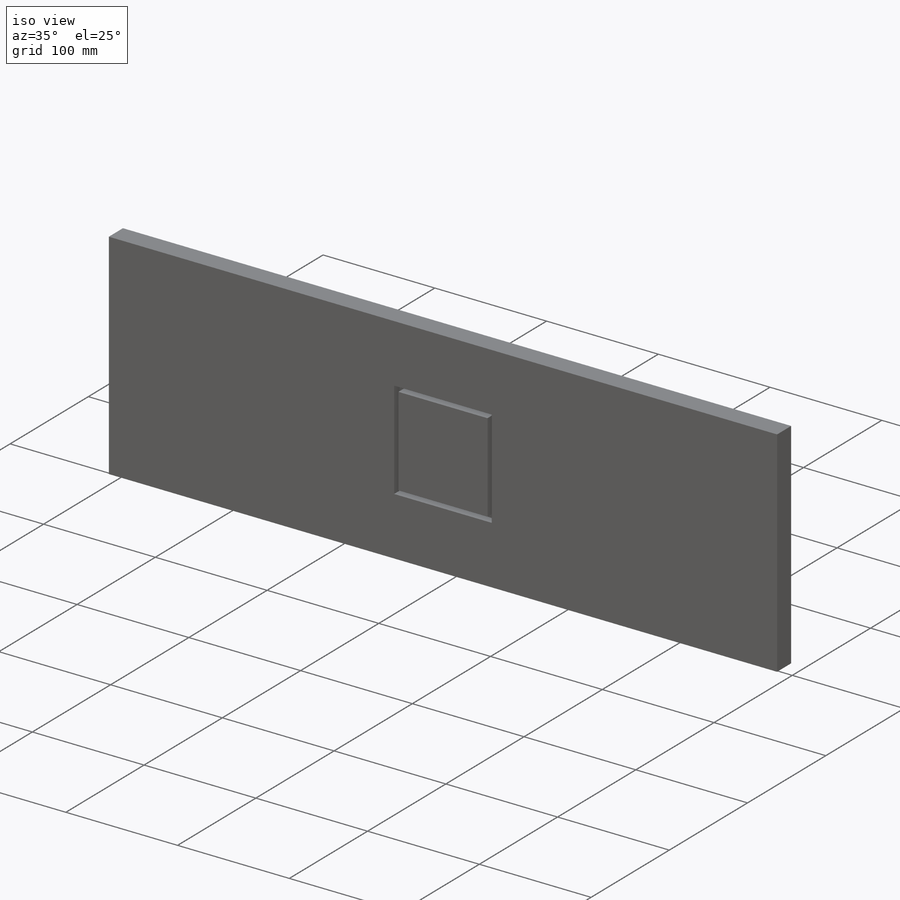
[diagram: iso view]
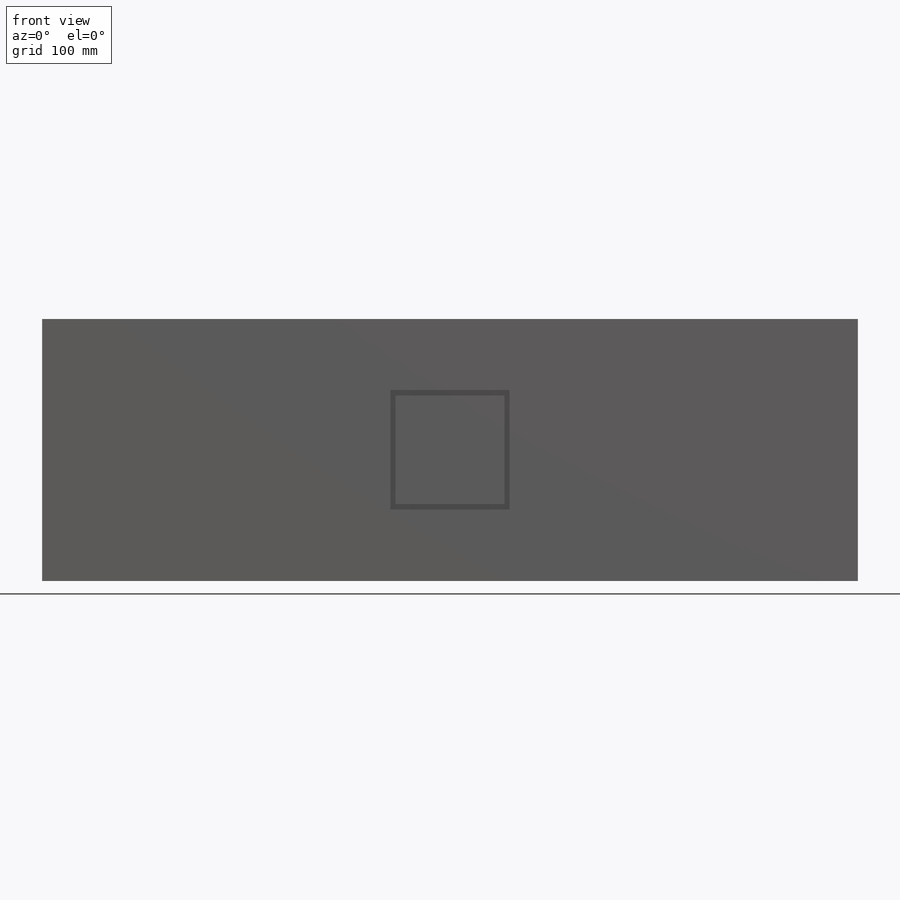
[diagram: front view]
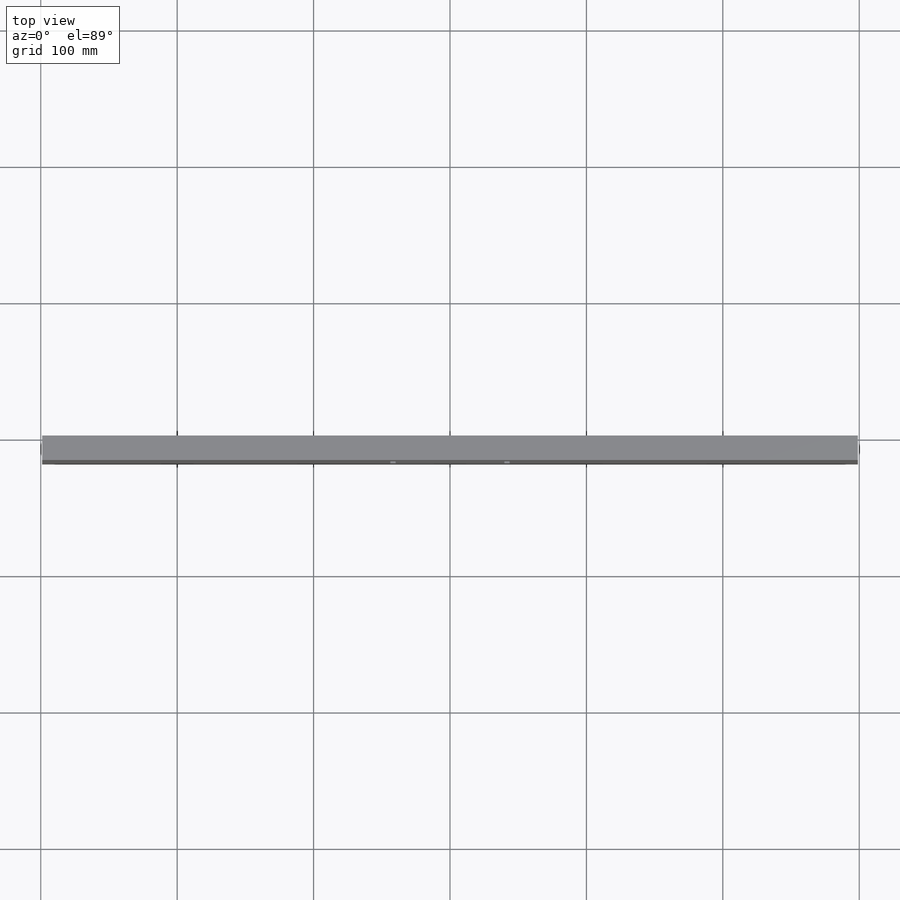
[diagram: top view]
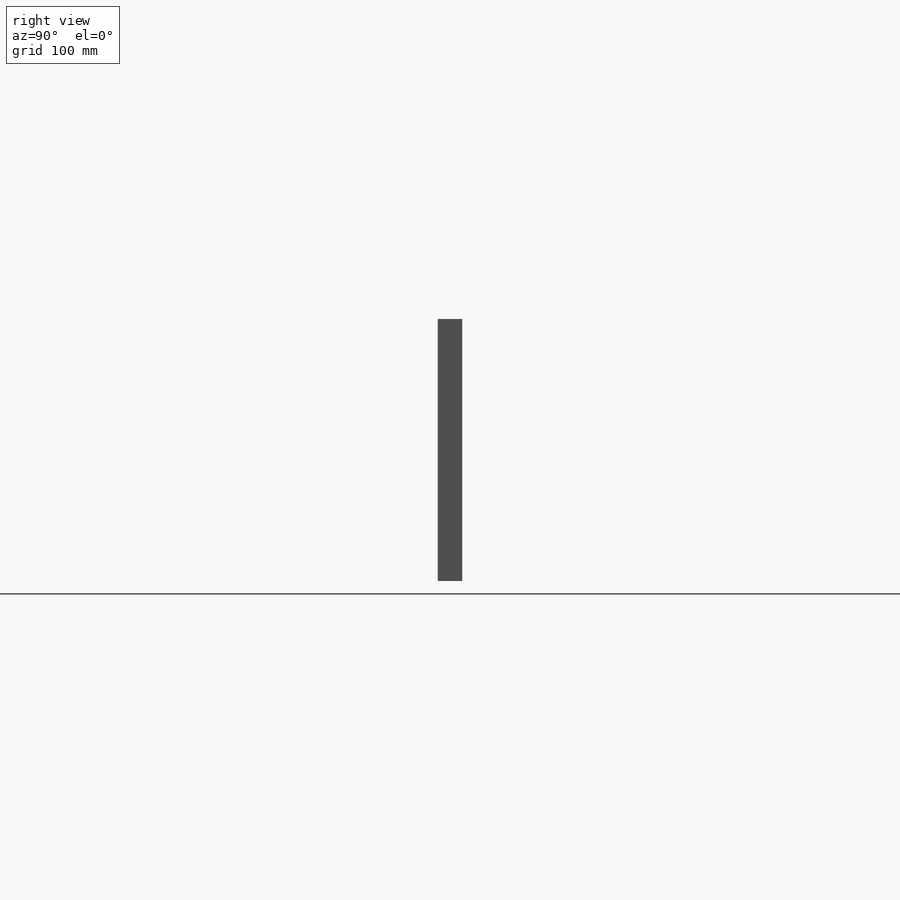
[diagram: right view]
SOLIDWORKS PART (.sldprt)
format: sldprt  version: not decoded by parser v0  size: 345,088 bytes
history: native  units: mm
features: sketch x5, extrude x3, cut_extrude x2, material x1 (+13 scaffold rows collapsed; 1 parser-record rows omitted)
feature tree (25):
  scaffold x13  (default folders/planes/origin — collapsed)
  material  "Material <not specified>"
  sketch  "Sketch1"  dims[D1=192.0mm D2=598.0mm]
  extrude  "Boss-Extrude1"  Depth=18mm
  sketch  "Sketch2"  dims[D1=87.4mm D2=87.6mm D3=~70.452067mm]
  cut_extrude  "Cut-Extrude1"  Depth=7mm
  sketch  "Sketch3"  dims[D4=10.0mm D1=60.0mm D2=67.0mm D3=10.0mm D5=13.5mm]
  cut_extrude  "Cut-Extrude2"  Depth=10.5mm _TNextInd=95 _TElemType=0mm _TCompTag=0mm _TID1=0mm
  extrude  "_TAttDefEntBased2"  Depth=0mm _TElemType=0mm _TID1=0mm _TCompTag=0mm _TElemTag=0mm _TID2=0mm _TSegmType=0mm
  extrude  "_TAttDefNameBased2"  Depth=0mm _TElemType=0mm _TElemTag=0mm _TID1=0mm _TID2=0mm _TSegmType=0mm _TCompTag=0mm
  parser-record x1  (decoder bookkeeping rows leaked as tree rows — omitted from the tree; the rows remain in map.json)
  sketch  "Sketch_MAC1-1_KITCHLED_MILLING"
  sketch  "CoordSys_MAC1-2_KITCHLED_MILLING"  dims[c1._TElemType=0.0mm c1._TElemTag=0.0mm c1._TID1=0.0mm c1._TID2=0.0mm c1._TSegmType=0.0mm c1._TCompTag=0.0mm c2._TElemType=0.0mm c2._TElemTag=0.0mm c2._TID1=0.0mm c2._TID2=0.0mm c2._TSegmType=0.0mm c2._TCompTag=0.0mm c3._TElemType=0.0mm c3._TID1=0.0mm c3._TCompTag=0.0mm c4._TElemType=0.0mm c4._TID1=0.0mm c4._TCompTag=0.0mm c5._TElemType=0.0mm c5._TID1=0.0mm c5._TCompTag=0.0mm c6._TElemType=0.0mm c6._TID1=0.0mm c6._TCompTag=0.0mm c7._TElemType=0.0mm c7._TID1=0.0mm c7._TCompTag=0.0mm c8._TElemType=0.0mm c8._TID1=0.0mm c8._TCompTag=0.0mm c9._TElemType=0.0mm c9._TID1=0.0mm c9._TCompTag=0.0mm c10._TElemType=0.0mm c10._TID1=0.0mm c10._TCompTag=0.0mm c11._TElemType=0.0mm c11._TID1=0.0mm c11._TCompTag=0.0mm c12._TElemType=0.0mm c12._TID1=0.0mm c12._TCompTag=0.0mm c13._TElemType=0.0mm c13._TID1=0.0mm c13._TCompTag=0.0mm c14._TElemType=0.0mm c14._TID1=0.0mm c14._TCompTag=0.0mm c15._TElemType=0.0mm c15._TID1=0.0mm c15._TCompTag=0.0mm c16._TElemType=0.0mm c16._TID1=0.0mm c16._TCompTag=0.0mm c17._TElemType=0.0mm c17._TID1=0.0mm c17._TCompTag=0.0mm c18._TElemType=0.0mm c18._TID1=0.0mm c18._TCompTag=0.0mm c19._TElemType=0.0mm c19._TID1=0.0mm c19._TCompTag=0.0mm c20._TElemType=0.0mm c20._TID1=0.0mm c20._TCompTag=0.0mm c21._TElemType=0.0mm c21._TID1=0.0mm c21._TCompTag=0.0mm c22._TElemType=0.0mm c22._TID1=0.0mm c22._TCompTag=0.0mm c23._TElemType=0.0mm c23._TID1=0.0mm c23._TCompTag=0.0mm c24._TElemType=0.0mm c24._TID1=0.0mm c24._TCompTag=0.0mm c25._TElemType=0.0mm c25._TID1=0.0mm c25._TCompTag=0.0mm c26._TElemType=0.0mm c26._TID1=0.0mm c26._TCompTag=0.0mm c27._TElemType=0.0mm c27._TID1=0.0mm c27._TCompTag=0.0mm c28._TElemType=0.0mm c28._TID1=0.0mm c28._TCompTag=0.0mm c29._TElemType=0.0mm c29._TID1=0.0mm c29._TCompTag=0.0mm c30._TElemType=0.0mm c30._TID1=0.0mm c30._TCompTag=0.0mm c31._TElemType=0.0mm c31._TID1=0.0mm c31._TCompTag=0.0mm c32._TElemType=0.0mm c32._TID1=0.0mm c32._TCompTag=0.0mm c33._TElemType=0.0mm c33._TID1=0.0mm c33._TCompTag=0.0mm c34._TElemType=0.0mm c34._TID1=0.0mm c34._TCompTag=0.0mm c35._TElemType=0.0mm c35._TID1=0.0mm c35._TCompTag=0.0mm c36._TElemType=0.0mm c36._TID1=0.0mm c36._TCompTag=0.0mm c37._TElemType=0.0mm c37._TID1=0.0mm c37._TCompTag=0.0mm c38._TElemType=0.0mm c38._TID1=0.0mm c38._TCompTag=0.0mm c39._TElemType=0.0mm c39._TID1=0.0mm c39._TCompTag=0.0mm c40._TElemType=0.0mm c40._TID1=0.0mm c40._TCompTag=0.0mm c41._TElemType=0.0mm c41._TID1=0.0mm c41._TCompTag=0.0mm c42._TElemType=0.0mm c42._TID1=0.0mm c42._TCompTag=0.0mm c43._TElemType=0.0mm c43._TID1=0.0mm c43._TCompTag=0.0mm c44._TElemType=0.0mm c44._TID1=0.0mm c44._TCompTag=0.0mm c45._TElemType=0.0mm c45._TID1=0.0mm c45._TCompTag=0.0mm c46._TElemType=0.0mm c46._TID1=0.0mm c46._TCompTag=0.0mm c47._TElemType=0.0mm c47._TID1=0.0mm c47._TCompTag=0.0mm c48._TElemType=0.0mm c48._TID1=0.0mm c48._TCompTag=0.0mm c49._TElemType=0.0mm c49._TID1=0.0mm c49._TCompTag=0.0mm c50._TElemType=0.0mm c50._TID1=0.0mm c50._TCompTag=0.0mm c51._TElemType=0.0mm c51._TID1=0.0mm c51._TCompTag=0.0mm c52._TElemType=0.0mm c52._TID1=0.0mm c52._TCompTag=0.0mm c53._TElemType=0.0mm c53._TID1=0.0mm c53._TCompTag=0.0mm c54._TElemType=0.0mm c54._TID1=0.0mm c54._TCompTag=0.0mm c55._TElemType=0.0mm c55._TID1=0.0mm c55._TCompTag=0.0mm c56._TElemType=0.0mm c56._TID1=0.0mm c56._TCompTag=0.0mm c57._TElemType=0.0mm c57._TID1=0.0mm c57._TCompTag=0.0mm c58._TElemType=0.0mm c58._TID1=0.0mm c58._TCompTag=0.0mm c59._TElemType=0.0mm c59._TID1=0.0mm c59._TCompTag=0.0mm c60._TElemType=0.0mm c60._TID1=0.0mm c60._TCompTag=0.0mm c61._TElemType=0.0mm c61._TID1=0.0mm c61._TCompTag=0.0mm c62._TElemType=0.0mm c62._TID1=0.0mm c62._TCompTag=0.0mm c63._TElemType=0.0mm c63._TID1=0.0mm c63._TCompTag=0.0mm c64._TElemType=0.0mm c64._TID1=0.0mm c64._TCompTag=0.0mm c65._TElemType=0.0mm c65._TID1=0.0mm c65._TCompTag=0.0mm c66._TElemType=0.0mm c66._TID1=0.0mm c66._TCompTag=0.0mm c67._TElemType=0.0mm c67._TID1=0.0mm c67._TCompTag=0.0mm c68._TElemType=0.0mm c68._TID1=0.0mm c68._TCompTag=0.0mm c69._TElemType=0.0mm c69._TID1=0.0mm c69._TCompTag=0.0mm c70._TElemType=0.0mm c70._TID1=0.0mm c70._TCompTag=0.0mm c71._TElemType=0.0mm c71._TID1=0.0mm c71._TCompTag=0.0mm c72._TElemType=0.0mm c72._TID1=0.0mm c72._TCompTag=0.0mm c73._TElemType=0.0mm c73._TID1=0.0mm c73._TCompTag=0.0mm c74._TElemType=0.0mm c74._TID1=0.0mm c74._TCompTag=0.0mm c75._TElemType=0.0mm c75._TID1=0.0mm c75._TCompTag=0.0mm c76._TElemType=0.0mm c76._TID1=0.0mm c76._TCompTag=0.0mm c77._TElemType=0.0mm c77._TID1=0.0mm c77._TCompTag=0.0mm c78._TElemType=0.0mm c78._TID1=0.0mm c78._TCompTag=0.0mm c79._TElemType=0.0mm c79._TID1=0.0mm c79._TCompTag=0.0mm c80._TElemType=0.0mm c80._TID1=0.0mm c80._TCompTag=0.0mm c81._TElemType=0.0mm c81._TID1=0.0mm c81._TCompTag=0.0mm c82._TElemType=0.0mm c82._TID1=0.0mm c82._TCompTag=0.0mm c83._TElemType=0.0mm c83._TID1=0.0mm c83._TCompTag=0.0mm c84._TElemType=0.0mm c84._TID1=0.0mm c84._TCompTag=0.0mm c85._TElemType=0.0mm c85._TID1=0.0mm c85._TCompTag=0.0mm c86._TElemType=0.0mm c86._TID1=0.0mm c86._TCompTag=0.0mm c87._TElemType=0.0mm c87._TID1=0.0mm c87._TCompTag=0.0mm c88._TElemType=0.0mm c88._TID1=0.0mm c88._TCompTag=0.0mm c89._TElemType=0.0mm c89._TID1=0.0mm c89._TCompTag=0.0mm c90._TElemType=0.0mm c90._TID1=0.0mm c90._TCompTag=0.0mm c91._TElemType=0.0mm c91._TID1=0.0mm c91._TCompTag=0.0mm c92._TElemType=0.0mm c92._TID1=0.0mm c92._TCompTag=0.0mm c93._TElemType=0.0mm c93._TID1=0.0mm c93._TCompTag=0.0mm]
decode coverage: 9 of 10 modeling features carry decoded parameters
note: ~ marks probable driven/reference dimensions
note: suppression state not decoded; provenance and decode notes live in map.json
